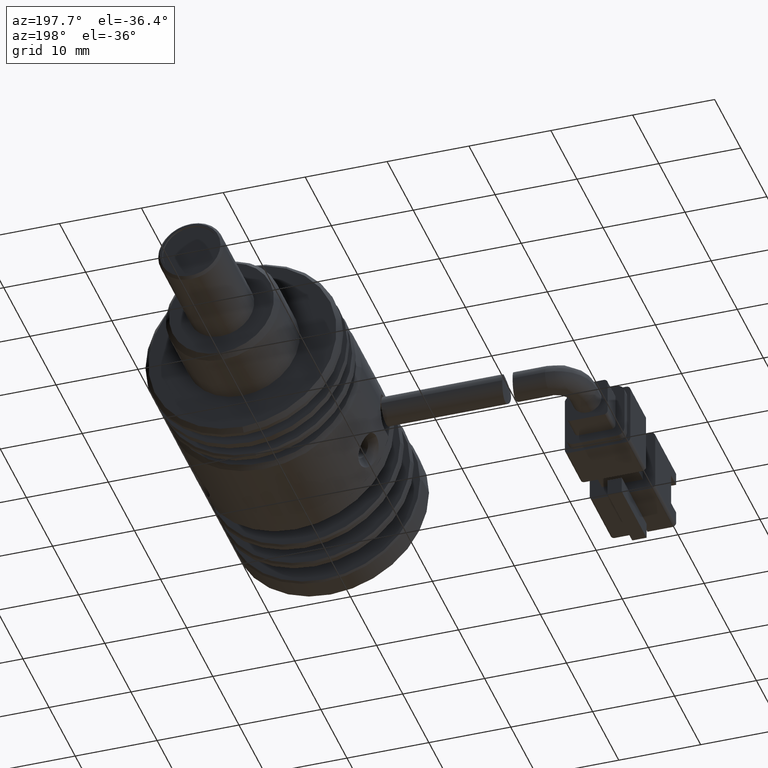
[diagram: clean part render]
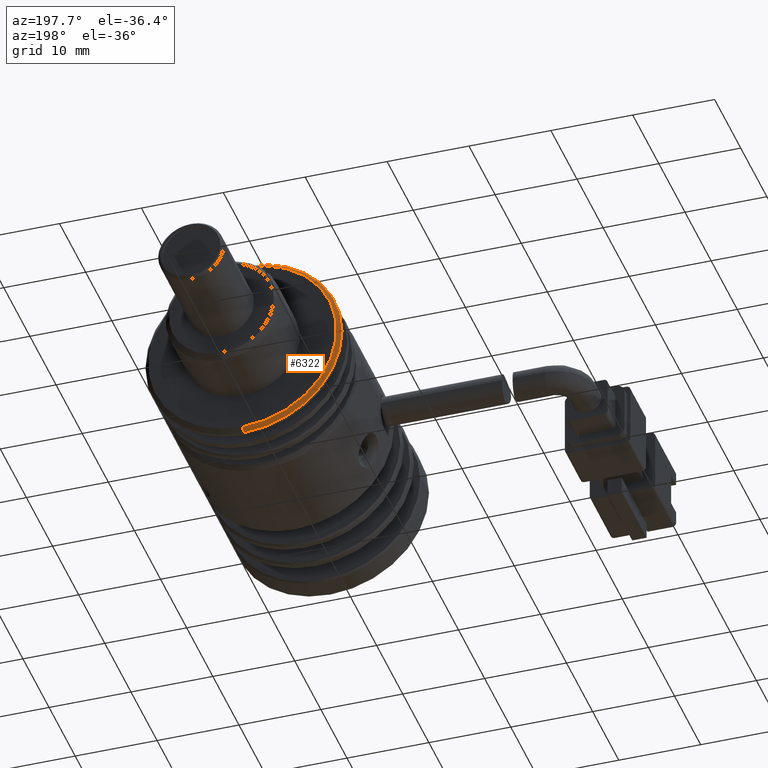
[diagram: same view with one face highlighted and labeled with its STEP entity id]
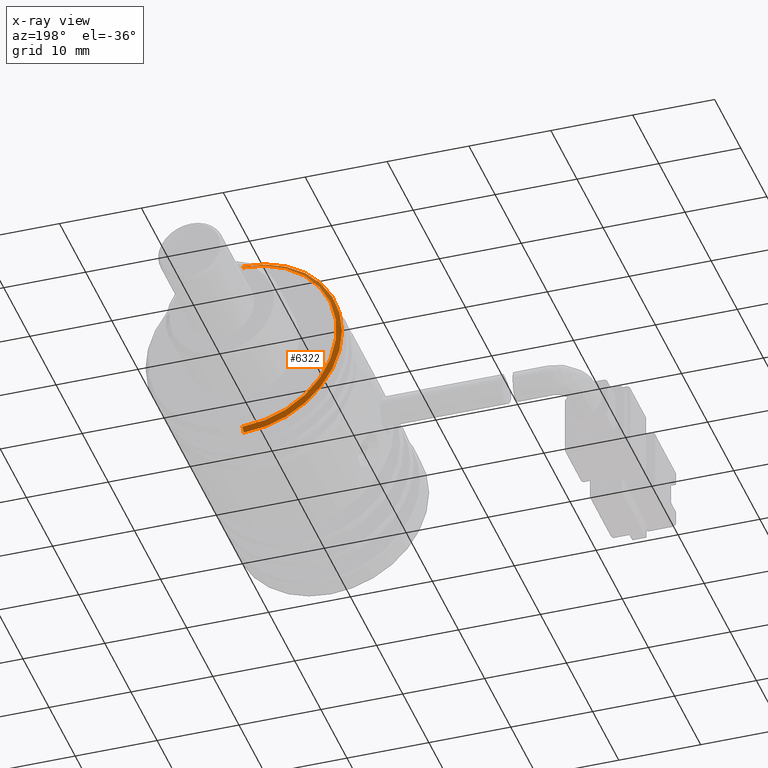
[diagram: x-ray of the same camera — body ghosted, the highlighted face saturated]
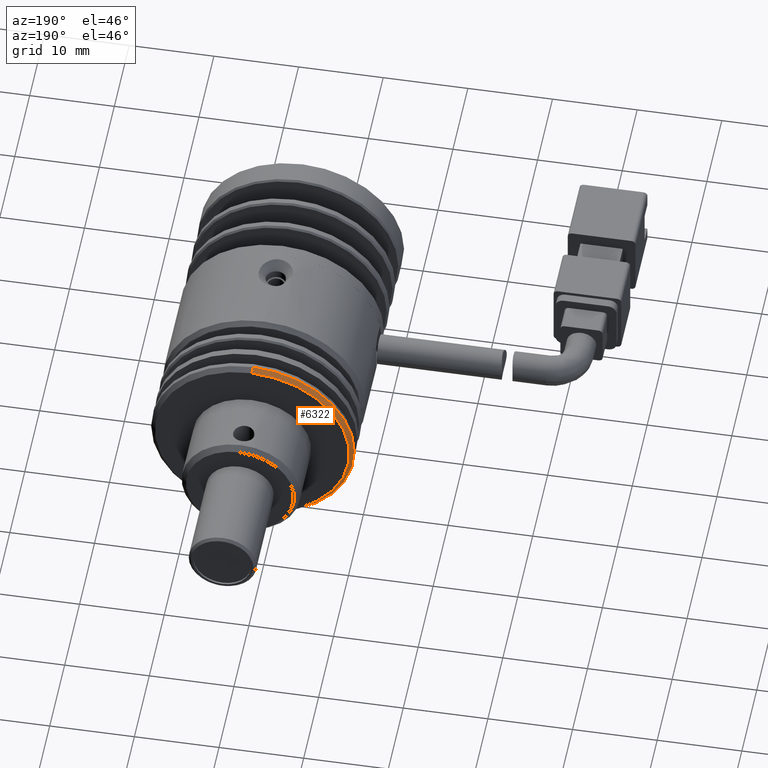
[diagram: same view with one face highlighted and labeled with its STEP entity id]
A machine part, auxiliary view. The second image highlights one B-rep face of the part: STEP entity #6322.
The next image is the same camera in x-ray: the body ghosted, the highlighted face saturated — about 1% of this face is hidden behind the body in this view.
A second angle (auxiliary view) of the same face is appended — the face is thin or edge-on in the first view.
In plain terms, the highlighted conical surface has half-angle 45 deg.
Its self-contained STEP definition (entity closure, byte-faithful):
#116 = VECTOR ( 'NONE', #17235, 999.9999999999998900 ) ;
#497 = ORIENTED_EDGE ( 'NONE', *, *, #14209, .T. ) ;
#2175 = CIRCLE ( 'NONE', #15803, 12.00000000000000000 ) ;
#2623 = CARTESIAN_POINT ( 'NONE',  ( 2.574933787635818000, 2.785064489987394900, -21.17403592165938500 ) ) ;
#3299 = VERTEX_POINT ( 'NONE', #12783 ) ;
#3884 = DIRECTION ( 'NONE',  ( 0.0000000000000000000, -0.7071067811865512400, -0.7071067811865439100 ) ) ;
#4599 = VECTOR ( 'NONE', #3884, 999.9999999999998900 ) ;
#5339 = VERTEX_POINT ( 'NONE', #17143 ) ;
#6322 = ADVANCED_FACE ( 'NONE', ( #6820 ), #8921, .T. ) ;
#6484 = DIRECTION ( 'NONE',  ( 0.0000000000000000000, 0.0000000000000000000, -1.000000000000000000 ) ) ;
#6820 = FACE_OUTER_BOUND ( 'NONE', #7332, .T. ) ;
#6979 = CARTESIAN_POINT ( 'NONE',  ( 2.574933787635818000, 2.785064489987394900, -9.174035921659385200 ) ) ;
#7325 = DIRECTION ( 'NONE',  ( 0.0000000000000000000, -1.000000000000000000, 0.0000000000000000000 ) ) ;
#7332 = EDGE_LOOP ( 'NONE', ( #15671, #18518, #18898, #497 ) ) ;
#7687 = CARTESIAN_POINT ( 'NONE',  ( 2.574933787635818000, 3.285064489987402000, -20.67403592165938200 ) ) ;
#7801 = EDGE_CURVE ( 'NONE', #5339, #16704, #13241, .T. ) ;
#7900 = CARTESIAN_POINT ( 'NONE',  ( 2.574933787635818000, 2.785064489987394900, -9.174035921659385200 ) ) ;
#7938 = LINE ( 'NONE', #15706, #116 ) ;
#8476 = DIRECTION ( 'NONE',  ( 0.0000000000000000000, 0.0000000000000000000, -1.000000000000000000 ) ) ;
#8574 = LINE ( 'NONE', #18640, #4599 ) ;
#8921 = CONICAL_SURFACE ( 'NONE', #17811, 12.00000000000000000, 0.7853981633974430600 ) ;
#10645 = EDGE_CURVE ( 'NONE', #16704, #17949, #8574, .T. ) ;
#12783 = CARTESIAN_POINT ( 'NONE',  ( 2.574933787635819400, 2.785064489987394900, 2.825964078340615700 ) ) ;
#13241 = CIRCLE ( 'NONE', #15791, 11.49999999999999600 ) ;
#13797 = DIRECTION ( 'NONE',  ( 0.0000000000000000000, -1.000000000000000000, 0.0000000000000000000 ) ) ;
#14115 = EDGE_CURVE ( 'NONE', #5339, #3299, #7938, .T. ) ;
#14209 = EDGE_CURVE ( 'NONE', #17949, #3299, #2175, .T. ) ;
#15671 = ORIENTED_EDGE ( 'NONE', *, *, #14115, .F. ) ;
#15706 = CARTESIAN_POINT ( 'NONE',  ( 2.574933787635819400, 2.785064489987394900, 2.825964078340615700 ) ) ;
#15791 = AXIS2_PLACEMENT_3D ( 'NONE', #16181, #7325, #17715 ) ;
#15803 = AXIS2_PLACEMENT_3D ( 'NONE', #6979, #17376, #8476 ) ;
#16181 = CARTESIAN_POINT ( 'NONE',  ( 2.574933787635818000, 3.285064489987402000, -9.174035921659385200 ) ) ;
#16704 = VERTEX_POINT ( 'NONE', #7687 ) ;
#17143 = CARTESIAN_POINT ( 'NONE',  ( 2.574933787635819400, 3.285064489987402000, 2.325964078340613500 ) ) ;
#17235 = DIRECTION ( 'NONE',  ( 8.659560562354888500E-017, -0.7071067811865512400, 0.7071067811865439100 ) ) ;
#17376 = DIRECTION ( 'NONE',  ( 0.0000000000000000000, 1.000000000000000000, 0.0000000000000000000 ) ) ;
#17715 = DIRECTION ( 'NONE',  ( 0.0000000000000000000, 0.0000000000000000000, -1.000000000000000000 ) ) ;
#17811 = AXIS2_PLACEMENT_3D ( 'NONE', #7900, #13797, #6484 ) ;
#17949 = VERTEX_POINT ( 'NONE', #2623 ) ;
#18518 = ORIENTED_EDGE ( 'NONE', *, *, #7801, .T. ) ;
#18640 = CARTESIAN_POINT ( 'NONE',  ( 2.574933787635818000, 2.785064489987394900, -21.17403592165938500 ) ) ;
#18898 = ORIENTED_EDGE ( 'NONE', *, *, #10645, .T. ) ;